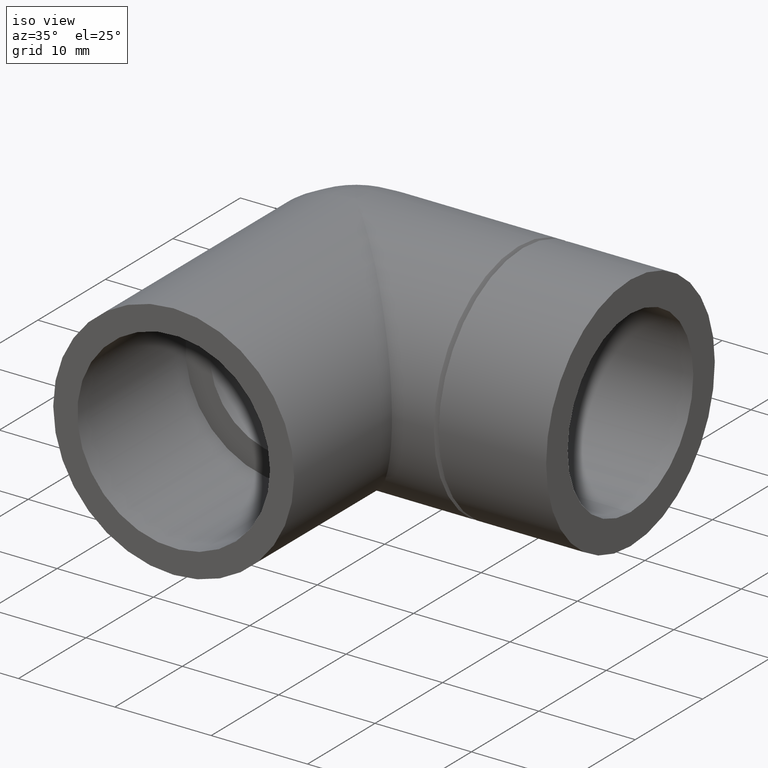
[diagram: clean part render]
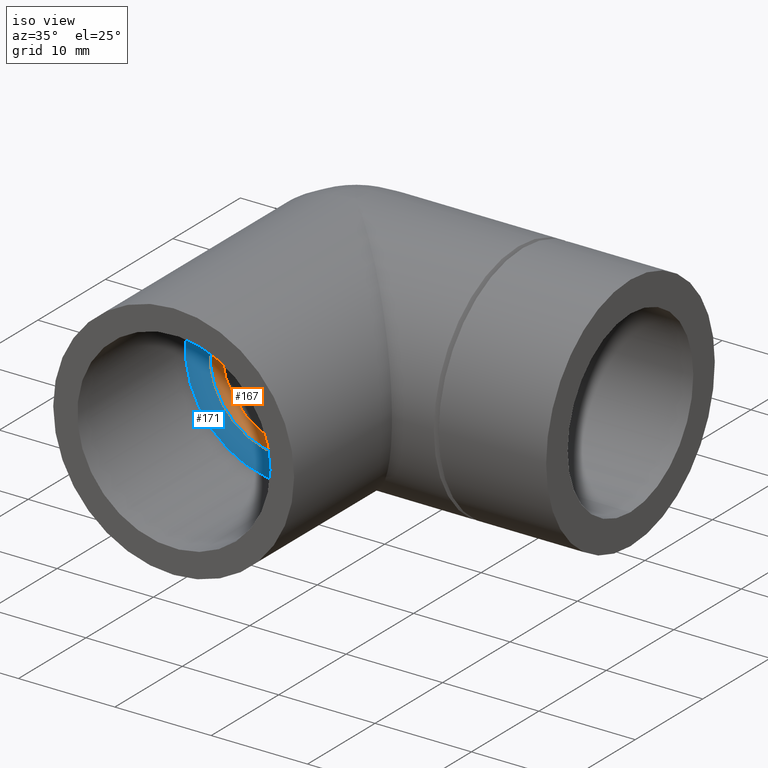
[diagram: same view with the hole feature highlighted: cylindrical wall and planar end face, labeled with their STEP entity ids]
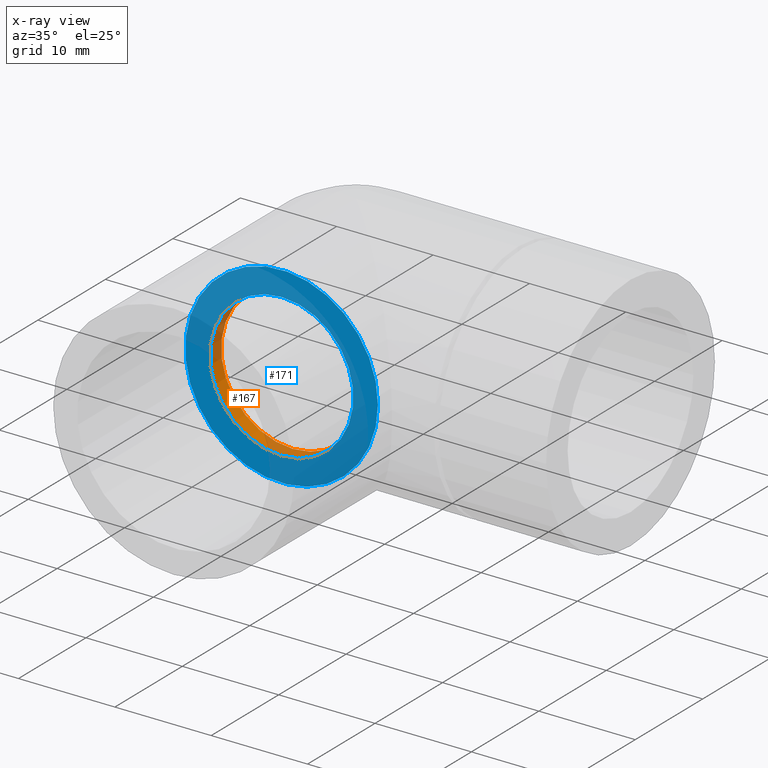
[diagram: x-ray of the same camera — body ghosted, the hole faces saturated]
A machine part, iso view. The highlighted faces form one hole feature of diameter 14.9048 mm: the cylindrical wall (entity #167, orange) and its adjacent planar end face (entity #171, blue) — they share a circular edge in the B-rep.
The next image is the same camera in x-ray (body ghosted, the hole faces saturated) — the bore reads through the body.
Wall:
#24=FACE_BOUND('',#54,.T.);
#38=FACE_OUTER_BOUND('',#53,.T.);
#53=EDGE_LOOP('',(#128));
#54=EDGE_LOOP('',(#129));
#82=CIRCLE('',#185,7.4524);
#83=CIRCLE('',#186,7.4524);
#97=VERTEX_POINT('',#281);
#98=VERTEX_POINT('',#283);
#112=EDGE_CURVE('',#97,#97,#82,.T.);
#113=EDGE_CURVE('',#98,#98,#83,.T.);
#128=ORIENTED_EDGE('',*,*,#112,.F.);
#129=ORIENTED_EDGE('',*,*,#113,.F.);
#160=CYLINDRICAL_SURFACE('',#184,7.4524);
#167=ADVANCED_FACE('',(#38,#24),#160,.F.);
#184=AXIS2_PLACEMENT_3D('',#280,#217,#218);
#185=AXIS2_PLACEMENT_3D('',#282,#219,#220);
#186=AXIS2_PLACEMENT_3D('',#284,#221,#222);
#217=DIRECTION('center_axis',(2.1386116256378E-17,-1.,0.));
#218=DIRECTION('ref_axis',(0.,0.,1.));
#219=DIRECTION('center_axis',(-1.22464679914735E-16,1.,0.));
#220=DIRECTION('ref_axis',(0.,0.,1.));
#221=DIRECTION('center_axis',(-6.12323399573677E-17,-1.,0.));
#222=DIRECTION('ref_axis',(0.,0.,1.));
#280=CARTESIAN_POINT('Origin',(-1.10290124600642E-15,-9.31549999999999,
0.));
#281=CARTESIAN_POINT('',(-1.97953211376912E-15,-11.,-7.4524));
#282=CARTESIAN_POINT('Origin',(-1.06687633317255E-15,-11.,0.));
#283=CARTESIAN_POINT('',(-2.01555702660299E-15,-9.31549999999999,-7.4524));
#284=CARTESIAN_POINT('Origin',(-1.10290124600642E-15,-9.31549999999999,
0.));
End face:
#19=PLANE('',#194);
#28=FACE_BOUND('',#62,.T.);
#42=FACE_OUTER_BOUND('',#61,.T.);
#61=EDGE_LOOP('',(#136));
#62=EDGE_LOOP('',(#137));
#82=CIRCLE('',#185,7.4524);
#86=CIRCLE('',#192,10.);
#97=VERTEX_POINT('',#281);
#101=VERTEX_POINT('',#292);
#112=EDGE_CURVE('',#97,#97,#82,.T.);
#116=EDGE_CURVE('',#101,#101,#86,.T.);
#136=ORIENTED_EDGE('',*,*,#116,.F.);
#137=ORIENTED_EDGE('',*,*,#112,.T.);
#171=ADVANCED_FACE('',(#42,#28),#19,.T.);
#185=AXIS2_PLACEMENT_3D('',#282,#219,#220);
#192=AXIS2_PLACEMENT_3D('',#293,#233,#234);
#194=AXIS2_PLACEMENT_3D('',#296,#237,#238);
#219=DIRECTION('center_axis',(-1.22464679914735E-16,1.,0.));
#220=DIRECTION('ref_axis',(0.,0.,1.));
#233=DIRECTION('center_axis',(-1.22464679914735E-16,1.,0.));
#234=DIRECTION('ref_axis',(-1.,-1.22464679914735E-16,0.));
#237=DIRECTION('center_axis',(1.22464679914735E-16,-1.,0.));
#238=DIRECTION('ref_axis',(0.,0.,-1.));
#281=CARTESIAN_POINT('',(-1.97953211376912E-15,-11.,-7.4524));
#282=CARTESIAN_POINT('Origin',(-1.06687633317255E-15,-11.,0.));
#292=CARTESIAN_POINT('',(10.,-11.,1.22464679914735E-15));
#293=CARTESIAN_POINT('Origin',(1.08610030844754E-15,-11.,0.));
#296=CARTESIAN_POINT('Origin',(5.50156104288387E-16,-11.,1.85037170770859E-16));